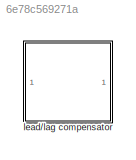
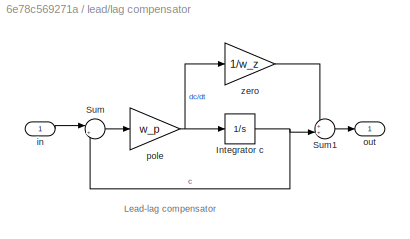
MODEL slx_6e78c569271a
KIND model
CONFIG AbsTol = auto
CONFIG EnableMultiTasking = on
CONFIG FixedStep = auto
CONFIG MaxStep = auto
CONFIG MinStep = auto
CONFIG RelTol = 1e-3
CONFIG SampleTimeConstraint = Unconstrained
CONFIG Solver = ode45
CONFIG SolverName = ode45
CONFIG StartTime = 0.0
CONFIG StopTime = 10.0
BLOCK [SubSystem] lead//lag compensator
  Ports = [1, 1]
  RequestExecContextInheritance = off
  Variant = off
BLOCK [Integrator] lead//lag compensator/Integrator c
  Ports = [1, 1]
BLOCK [Sum] lead//lag compensator/Sum
  IconShape = round
  InputSameDT = off
  Inputs = |+-
  OutDataTypeStr = Inherit: Inherit via internal rule
  Ports = [2, 1]
BLOCK [Sum] lead//lag compensator/Sum1
  IconShape = round
  InputSameDT = off
  Inputs = ++|
  OutDataTypeStr = Inherit: Inherit via internal rule
  Ports = [2, 1]
BLOCK [Inport] lead//lag compensator/in
  IconDisplay = Port number
BLOCK [Outport] lead//lag compensator/out
  IconDisplay = Port number
BLOCK [Gain] lead//lag compensator/pole
  Gain = w_p
BLOCK [Gain] lead//lag compensator/zero
  Gain = 1/w_z
ANNOTATION lead//lag compensator: Lead-lag compensator
NET lead//lag compensator/Integrator c:1 -> lead//lag compensator/Sum1:2, lead//lag compensator/Sum:2
LINE lead//lag compensator/Sum1:1 -> lead//lag compensator/out:1
LINE lead//lag compensator/Sum:1 -> lead//lag compensator/pole:1
LINE lead//lag compensator/in:1 -> lead//lag compensator/Sum:1
NET lead//lag compensator/pole:1 -> lead//lag compensator/Integrator c:1, lead//lag compensator/zero:1
LINE lead//lag compensator/zero:1 -> lead//lag compensator/Sum1:1
note: NET lines group one-source signal fan-out (src -> all destinations, sorted); 1:1 wires keep LINE
